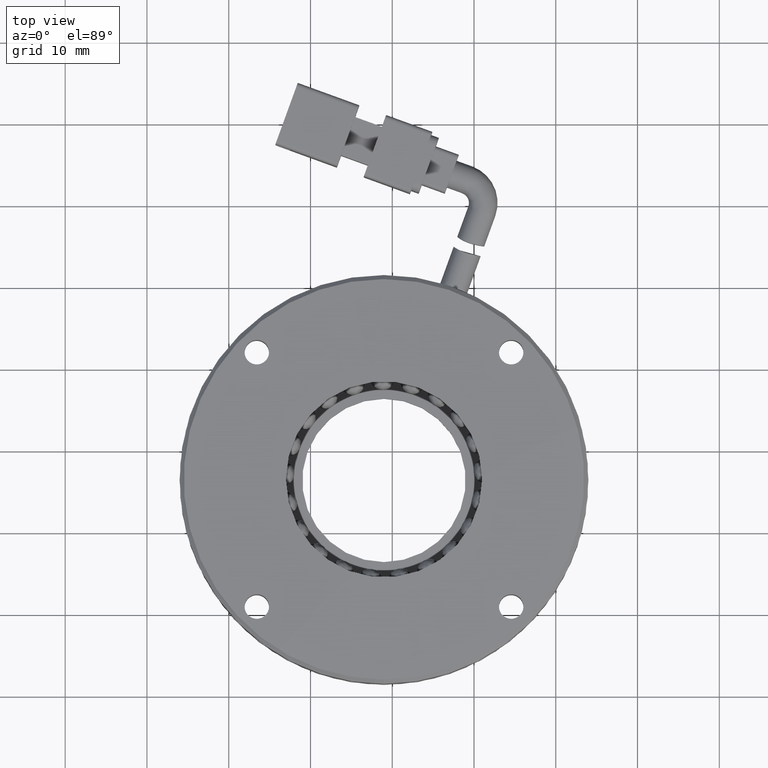
[diagram: clean part render]
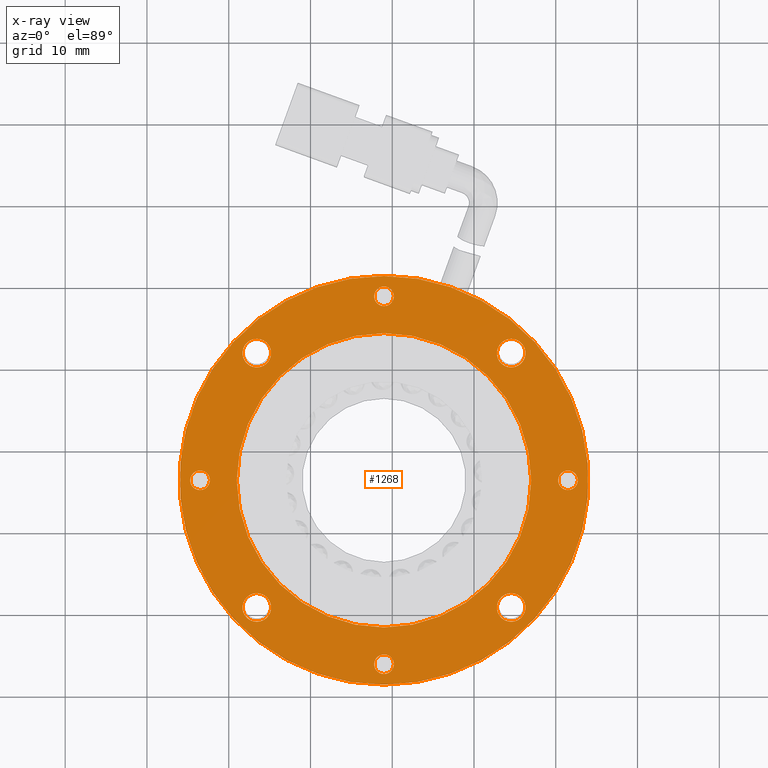
[diagram: x-ray — body ghosted, one internal face saturated and labeled with its STEP entity id]
A machine part, top view, then the same camera in x-ray: the body is ghosted and one INTERNAL B-rep face — a face not visible from any outside direction — is saturated and labeled: STEP entity #1268.
In plain terms, the highlighted planar face has unit normal (-0, -0, -1).
Its self-contained STEP definition (entity closure, byte-faithful):
#2 = CARTESIAN_POINT ( 'NONE',  ( -121.0083944312394000, 6.460725025464729900, -3.499999999999940500 ) ) ;
#172 = DIRECTION ( 'NONE',  ( 0.0000000000000000000, 1.000000000000000000, 0.0000000000000000000 ) ) ;
#203 = CARTESIAN_POINT ( 'NONE',  ( -121.0083944312391500, -16.03927497453527100, -3.499999999999940500 ) ) ;
#624 = CIRCLE ( 'NONE', #5957, 25.00000000000000000 ) ;
#766 = DIRECTION ( 'NONE',  ( -1.278084676573917400E-047, 0.0000000000000000000, -1.000000000000000000 ) ) ;
#858 = FACE_BOUND ( 'NONE', #2101, .T. ) ;
#956 = ORIENTED_EDGE ( 'NONE', *, *, #9378, .T. ) ;
#1020 = CARTESIAN_POINT ( 'NONE',  ( -121.0083944312394800, 27.76072502546471900, -3.499999999999940500 ) ) ;
#1026 = AXIS2_PLACEMENT_3D ( 'NONE', #5763, #19661, #7750 ) ;
#1186 = VERTEX_POINT ( 'NONE', #22109 ) ;
#1268 = ADVANCED_FACE ( 'NONE', ( #16749, #22065, #11439, #1482, #6184, #858, #21432, #16121, #10825, #5564 ), #1804, .F. ) ;
#1301 = AXIS2_PLACEMENT_3D ( 'NONE', #4567, #18446, #6562 ) ;
#1373 = EDGE_CURVE ( 'NONE', #12285, #13074, #3026, .T. ) ;
#1482 = FACE_BOUND ( 'NONE', #25161, .T. ) ;
#1502 = CARTESIAN_POINT ( 'NONE',  ( -136.5647436173435400, 22.01707421156869400, -3.499999999999940500 ) ) ;
#1603 = CARTESIAN_POINT ( 'NONE',  ( -121.0083944312394000, 31.46072502546472900, -3.499999999999940500 ) ) ;
#1804 = PLANE ( 'NONE',  #9235 ) ;
#1940 = AXIS2_PLACEMENT_3D ( 'NONE', #203, #14123, #2210 ) ;
#1961 = VERTEX_POINT ( 'NONE', #10721 ) ;
#2038 = DIRECTION ( 'NONE',  ( 0.0000000000000000000, -1.000000000000000000, 0.0000000000000000000 ) ) ;
#2101 = EDGE_LOOP ( 'NONE', ( #16937, #24736 ) ) ;
#2210 = DIRECTION ( 'NONE',  ( 0.0000000000000000000, 1.000000000000000000, 0.0000000000000000000 ) ) ;
#2223 = CARTESIAN_POINT ( 'NONE',  ( -121.0083944312394000, 6.460725025464729900, -3.499999999999940500 ) ) ;
#2263 = CIRCLE ( 'NONE', #22805, 1.749999999999994700 ) ;
#2620 = VERTEX_POINT ( 'NONE', #15522 ) ;
#2697 = EDGE_CURVE ( 'NONE', #21178, #20421, #2998, .T. ) ;
#2747 = CARTESIAN_POINT ( 'NONE',  ( -121.0083944312394000, 6.460725025464729900, -3.499999999999940500 ) ) ;
#2885 = CARTESIAN_POINT ( 'NONE',  ( -105.4520452451353800, 22.01707421156880100, -3.499999999999940500 ) ) ;
#2998 = CIRCLE ( 'NONE', #23166, 18.00000000000000400 ) ;
#3026 = CIRCLE ( 'NONE', #18589, 1.749999999999994700 ) ;
#3054 = CARTESIAN_POINT ( 'NONE',  ( -136.5647436173435400, 20.26707421156870100, -3.499999999999940500 ) ) ;
#3117 = AXIS2_PLACEMENT_3D ( 'NONE', #24045, #12114, #172 ) ;
#3503 = DIRECTION ( 'NONE',  ( 0.0000000000000000000, 1.000000000000000000, 0.0000000000000000000 ) ) ;
#3892 = DIRECTION ( 'NONE',  ( -1.278084676573917700E-047, -7.983674700015282600E-110, -1.000000000000000000 ) ) ;
#4069 = DIRECTION ( 'NONE',  ( -1.278084676573917700E-047, 1.000000000000000000, 1.633500440493055000E-094 ) ) ;
#4216 = EDGE_LOOP ( 'NONE', ( #15406, #8569 ) ) ;
#4324 = VERTEX_POINT ( 'NONE', #22964 ) ;
#4350 = EDGE_CURVE ( 'NONE', #16460, #9109, #23772, .T. ) ;
#4567 = CARTESIAN_POINT ( 'NONE',  ( -105.4520452451351500, -9.095624160639122400, -3.499999999999940500 ) ) ;
#4764 = VERTEX_POINT ( 'NONE', #22699 ) ;
#4921 = DIRECTION ( 'NONE',  ( 0.0000000000000000000, 1.000000000000000000, 0.0000000000000000000 ) ) ;
#5030 = DIRECTION ( 'NONE',  ( -1.278084676573917400E-047, 0.0000000000000000000, -1.000000000000000000 ) ) ;
#5118 = DIRECTION ( 'NONE',  ( 0.0000000000000000000, -1.000000000000000000, 0.0000000000000000000 ) ) ;
#5184 = CARTESIAN_POINT ( 'NONE',  ( -136.5647436173433100, -7.345624160639461700, -3.499999999999940500 ) ) ;
#5564 = FACE_BOUND ( 'NONE', #4216, .T. ) ;
#5641 = CARTESIAN_POINT ( 'NONE',  ( -105.4520452451351500, -9.095624160639122400, -3.499999999999940500 ) ) ;
#5763 = CARTESIAN_POINT ( 'NONE',  ( -121.0083944312391500, -16.03927497453527100, -3.499999999999940500 ) ) ;
#5822 = CIRCLE ( 'NONE', #12768, 18.00000000000000400 ) ;
#5902 = EDGE_CURVE ( 'NONE', #14553, #2620, #11695, .T. ) ;
#5957 = AXIS2_PLACEMENT_3D ( 'NONE', #2, #13953, #2038 ) ;
#6053 = ORIENTED_EDGE ( 'NONE', *, *, #19858, .T. ) ;
#6094 = EDGE_CURVE ( 'NONE', #25474, #1186, #10436, .T. ) ;
#6115 = DIRECTION ( 'NONE',  ( -1.278084676573917400E-047, 0.0000000000000000000, -1.000000000000000000 ) ) ;
#6184 = FACE_BOUND ( 'NONE', #22026, .T. ) ;
#6506 = AXIS2_PLACEMENT_3D ( 'NONE', #10701, #24636, #12710 ) ;
#6562 = DIRECTION ( 'NONE',  ( 0.0000000000000000000, 1.000000000000000000, 0.0000000000000000000 ) ) ;
#6598 = CARTESIAN_POINT ( 'NONE',  ( -105.4520452451353800, 20.26707421156880800, -3.499999999999940500 ) ) ;
#6603 = ORIENTED_EDGE ( 'NONE', *, *, #5902, .T. ) ;
#6809 = DIRECTION ( 'NONE',  ( -1.278084676573917400E-047, 0.0000000000000000000, -1.000000000000000000 ) ) ;
#6851 = AXIS2_PLACEMENT_3D ( 'NONE', #18006, #6115, #20022 ) ;
#7051 = DIRECTION ( 'NONE',  ( -1.278084676573917400E-047, 0.0000000000000000000, -1.000000000000000000 ) ) ;
#7127 = DIRECTION ( 'NONE',  ( -1.278084676573917400E-047, 0.0000000000000000000, -1.000000000000000000 ) ) ;
#7501 = AXIS2_PLACEMENT_3D ( 'NONE', #19025, #7127, #21044 ) ;
#7614 = DIRECTION ( 'NONE',  ( 0.0000000000000000000, 1.000000000000000000, 0.0000000000000000000 ) ) ;
#7734 = EDGE_LOOP ( 'NONE', ( #14641, #23397 ) ) ;
#7750 = DIRECTION ( 'NONE',  ( 0.0000000000000000000, 1.000000000000000000, 0.0000000000000000000 ) ) ;
#8569 = ORIENTED_EDGE ( 'NONE', *, *, #6094, .T. ) ;
#8916 = EDGE_LOOP ( 'NONE', ( #21882, #24363 ) ) ;
#8919 = CARTESIAN_POINT ( 'NONE',  ( -121.0083944312394000, -11.53927497453527300, -3.499999999999940500 ) ) ;
#9109 = VERTEX_POINT ( 'NONE', #5184 ) ;
#9148 = AXIS2_PLACEMENT_3D ( 'NONE', #16920, #5030, #18921 ) ;
#9187 = ORIENTED_EDGE ( 'NONE', *, *, #14363, .T. ) ;
#9235 = AXIS2_PLACEMENT_3D ( 'NONE', #2223, #3892, #4069 ) ;
#9378 = EDGE_CURVE ( 'NONE', #4324, #10505, #18023, .T. ) ;
#9537 = EDGE_CURVE ( 'NONE', #1186, #25474, #23629, .T. ) ;
#9751 = AXIS2_PLACEMENT_3D ( 'NONE', #5641, #19532, #7614 ) ;
#9889 = CIRCLE ( 'NONE', #6851, 1.199999999999999700 ) ;
#10216 = DIRECTION ( 'NONE',  ( 0.0000000000000000000, -1.000000000000000000, 0.0000000000000000000 ) ) ;
#10246 = EDGE_CURVE ( 'NONE', #21746, #4764, #9889, .T. ) ;
#10326 = DIRECTION ( 'NONE',  ( 1.278084676573917400E-047, -0.0000000000000000000, 1.000000000000000000 ) ) ;
#10381 = CARTESIAN_POINT ( 'NONE',  ( -121.0083944312394000, 6.460725025464729900, -3.499999999999940500 ) ) ;
#10436 = CIRCLE ( 'NONE', #9751, 1.749999999999992900 ) ;
#10505 = VERTEX_POINT ( 'NONE', #1020 ) ;
#10632 = ORIENTED_EDGE ( 'NONE', *, *, #24752, .F. ) ;
#10701 = CARTESIAN_POINT ( 'NONE',  ( -143.5083944312394000, 6.460725025464570100, -3.499999999999940500 ) ) ;
#10708 = CIRCLE ( 'NONE', #1940, 1.199999999999999700 ) ;
#10721 = CARTESIAN_POINT ( 'NONE',  ( -121.0083944312394000, -18.53927497453527500, -3.499999999999940500 ) ) ;
#10825 = FACE_BOUND ( 'NONE', #17319, .T. ) ;
#10835 = DIRECTION ( 'NONE',  ( -1.278084676573917400E-047, 0.0000000000000000000, -1.000000000000000000 ) ) ;
#10874 = DIRECTION ( 'NONE',  ( -1.278084676573917400E-047, 0.0000000000000000000, -1.000000000000000000 ) ) ;
#11234 = VERTEX_POINT ( 'NONE', #1603 ) ;
#11357 = ORIENTED_EDGE ( 'NONE', *, *, #21887, .T. ) ;
#11439 = FACE_BOUND ( 'NONE', #8916, .T. ) ;
#11468 = CARTESIAN_POINT ( 'NONE',  ( -143.5083944312394000, 7.660725025464570200, -3.499999999999940500 ) ) ;
#11531 = EDGE_CURVE ( 'NONE', #24853, #18638, #23118, .T. ) ;
#11695 = CIRCLE ( 'NONE', #18735, 1.199999999999999700 ) ;
#12114 = DIRECTION ( 'NONE',  ( -1.278084676573917400E-047, 0.0000000000000000000, -1.000000000000000000 ) ) ;
#12285 = VERTEX_POINT ( 'NONE', #12302 ) ;
#12302 = CARTESIAN_POINT ( 'NONE',  ( -136.5647436173435400, 23.76707421156868700, -3.499999999999940500 ) ) ;
#12702 = CARTESIAN_POINT ( 'NONE',  ( -105.4520452451353800, 22.01707421156880100, -3.499999999999940500 ) ) ;
#12710 = DIRECTION ( 'NONE',  ( 0.0000000000000000000, 1.000000000000000000, 0.0000000000000000000 ) ) ;
#12768 = AXIS2_PLACEMENT_3D ( 'NONE', #2747, #16664, #5118 ) ;
#12916 = VERTEX_POINT ( 'NONE', #18552 ) ;
#13074 = VERTEX_POINT ( 'NONE', #3054 ) ;
#13100 = CIRCLE ( 'NONE', #18891, 1.199999999999999700 ) ;
#13365 = CIRCLE ( 'NONE', #23132, 1.749999999999994700 ) ;
#13429 = AXIS2_PLACEMENT_3D ( 'NONE', #18702, #6809, #20727 ) ;
#13546 = ORIENTED_EDGE ( 'NONE', *, *, #1373, .T. ) ;
#13745 = ORIENTED_EDGE ( 'NONE', *, *, #2697, .F. ) ;
#13953 = DIRECTION ( 'NONE',  ( -1.278084676573917400E-047, 0.0000000000000000000, -1.000000000000000000 ) ) ;
#14123 = DIRECTION ( 'NONE',  ( -1.278084676573917400E-047, 0.0000000000000000000, -1.000000000000000000 ) ) ;
#14128 = EDGE_LOOP ( 'NONE', ( #13546, #11357 ) ) ;
#14141 = CIRCLE ( 'NONE', #13429, 1.749999999999994700 ) ;
#14363 = EDGE_CURVE ( 'NONE', #9109, #16460, #14141, .T. ) ;
#14553 = VERTEX_POINT ( 'NONE', #11468 ) ;
#14641 = ORIENTED_EDGE ( 'NONE', *, *, #19051, .F. ) ;
#14683 = DIRECTION ( 'NONE',  ( 0.0000000000000000000, 1.000000000000000000, 0.0000000000000000000 ) ) ;
#14996 = CIRCLE ( 'NONE', #17781, 25.00000000000000000 ) ;
#15140 = CIRCLE ( 'NONE', #19886, 1.749999999999994700 ) ;
#15188 = CARTESIAN_POINT ( 'NONE',  ( -136.5647436173435400, 22.01707421156869400, -3.499999999999940500 ) ) ;
#15375 = DIRECTION ( 'NONE',  ( -1.278084676573917400E-047, 0.0000000000000000000, -1.000000000000000000 ) ) ;
#15406 = ORIENTED_EDGE ( 'NONE', *, *, #9537, .T. ) ;
#15418 = DIRECTION ( 'NONE',  ( -1.278084676573917400E-047, 0.0000000000000000000, -1.000000000000000000 ) ) ;
#15464 = DIRECTION ( 'NONE',  ( 0.0000000000000000000, 1.000000000000000000, 0.0000000000000000000 ) ) ;
#15522 = CARTESIAN_POINT ( 'NONE',  ( -143.5083944312394000, 5.260725025464570800, -3.499999999999940500 ) ) ;
#15841 = CARTESIAN_POINT ( 'NONE',  ( -105.4520452451351500, -10.84562416063911500, -3.499999999999940500 ) ) ;
#16121 = FACE_BOUND ( 'NONE', #14128, .T. ) ;
#16274 = EDGE_CURVE ( 'NONE', #10505, #4324, #19809, .T. ) ;
#16460 = VERTEX_POINT ( 'NONE', #21504 ) ;
#16664 = DIRECTION ( 'NONE',  ( 1.278084676573917400E-047, -0.0000000000000000000, 1.000000000000000000 ) ) ;
#16749 = FACE_OUTER_BOUND ( 'NONE', #7734, .T. ) ;
#16810 = DIRECTION ( 'NONE',  ( -1.278084676573917400E-047, 0.0000000000000000000, -1.000000000000000000 ) ) ;
#16920 = CARTESIAN_POINT ( 'NONE',  ( -121.0083944312394800, 28.96072502546472200, -3.499999999999940500 ) ) ;
#16937 = ORIENTED_EDGE ( 'NONE', *, *, #21566, .T. ) ;
#17319 = EDGE_LOOP ( 'NONE', ( #9187, #18208 ) ) ;
#17781 = AXIS2_PLACEMENT_3D ( 'NONE', #18953, #7051, #20969 ) ;
#17873 = EDGE_CURVE ( 'NONE', #4764, #21746, #13100, .T. ) ;
#18006 = CARTESIAN_POINT ( 'NONE',  ( -98.50839443123941000, 6.460725025464729900, -3.499999999999940500 ) ) ;
#18023 = CIRCLE ( 'NONE', #3117, 1.199999999999999700 ) ;
#18208 = ORIENTED_EDGE ( 'NONE', *, *, #4350, .T. ) ;
#18446 = DIRECTION ( 'NONE',  ( -1.278084676573917400E-047, 0.0000000000000000000, -1.000000000000000000 ) ) ;
#18552 = CARTESIAN_POINT ( 'NONE',  ( -105.4520452451353800, 23.76707421156879700, -3.499999999999940500 ) ) ;
#18589 = AXIS2_PLACEMENT_3D ( 'NONE', #15188, #15375, #15464 ) ;
#18638 = VERTEX_POINT ( 'NONE', #19976 ) ;
#18702 = CARTESIAN_POINT ( 'NONE',  ( -136.5647436173433100, -9.095624160639456300, -3.499999999999940500 ) ) ;
#18735 = AXIS2_PLACEMENT_3D ( 'NONE', #22774, #10835, #24757 ) ;
#18891 = AXIS2_PLACEMENT_3D ( 'NONE', #22817, #10874, #24796 ) ;
#18921 = DIRECTION ( 'NONE',  ( 0.0000000000000000000, 1.000000000000000000, 0.0000000000000000000 ) ) ;
#18953 = CARTESIAN_POINT ( 'NONE',  ( -121.0083944312394000, 6.460725025464729900, -3.499999999999940500 ) ) ;
#19025 = CARTESIAN_POINT ( 'NONE',  ( -136.5647436173433100, -9.095624160639456300, -3.499999999999940500 ) ) ;
#19051 = EDGE_CURVE ( 'NONE', #1961, #11234, #624, .T. ) ;
#19339 = ORIENTED_EDGE ( 'NONE', *, *, #16274, .T. ) ;
#19371 = EDGE_CURVE ( 'NONE', #12916, #23831, #13365, .T. ) ;
#19532 = DIRECTION ( 'NONE',  ( -1.278084676573917400E-047, 0.0000000000000000000, -1.000000000000000000 ) ) ;
#19661 = DIRECTION ( 'NONE',  ( -1.278084676573917400E-047, 0.0000000000000000000, -1.000000000000000000 ) ) ;
#19809 = CIRCLE ( 'NONE', #9148, 1.199999999999999700 ) ;
#19858 = EDGE_CURVE ( 'NONE', #2620, #14553, #20808, .T. ) ;
#19886 = AXIS2_PLACEMENT_3D ( 'NONE', #12702, #766, #14683 ) ;
#19976 = CARTESIAN_POINT ( 'NONE',  ( -121.0083944312391500, -14.83927497453527200, -3.499999999999940500 ) ) ;
#20022 = DIRECTION ( 'NONE',  ( 0.0000000000000000000, 1.000000000000000000, 0.0000000000000000000 ) ) ;
#20407 = ORIENTED_EDGE ( 'NONE', *, *, #23222, .T. ) ;
#20421 = VERTEX_POINT ( 'NONE', #8919 ) ;
#20727 = DIRECTION ( 'NONE',  ( 0.0000000000000000000, 1.000000000000000000, 0.0000000000000000000 ) ) ;
#20808 = CIRCLE ( 'NONE', #6506, 1.199999999999999700 ) ;
#20969 = DIRECTION ( 'NONE',  ( 0.0000000000000000000, -1.000000000000000000, 0.0000000000000000000 ) ) ;
#21044 = DIRECTION ( 'NONE',  ( 0.0000000000000000000, 1.000000000000000000, 0.0000000000000000000 ) ) ;
#21098 = EDGE_LOOP ( 'NONE', ( #10632, #13745 ) ) ;
#21178 = VERTEX_POINT ( 'NONE', #25604 ) ;
#21432 = FACE_BOUND ( 'NONE', #22030, .T. ) ;
#21504 = CARTESIAN_POINT ( 'NONE',  ( -136.5647436173433100, -10.84562416063945100, -3.499999999999940500 ) ) ;
#21566 = EDGE_CURVE ( 'NONE', #18638, #24853, #10708, .T. ) ;
#21746 = VERTEX_POINT ( 'NONE', #22764 ) ;
#21882 = ORIENTED_EDGE ( 'NONE', *, *, #10246, .T. ) ;
#21887 = EDGE_CURVE ( 'NONE', #13074, #12285, #2263, .T. ) ;
#22026 = EDGE_LOOP ( 'NONE', ( #6603, #6053 ) ) ;
#22030 = EDGE_LOOP ( 'NONE', ( #22596, #20407 ) ) ;
#22065 = FACE_BOUND ( 'NONE', #21098, .T. ) ;
#22109 = CARTESIAN_POINT ( 'NONE',  ( -105.4520452451351500, -7.345624160639128600, -3.499999999999940500 ) ) ;
#22596 = ORIENTED_EDGE ( 'NONE', *, *, #19371, .T. ) ;
#22699 = CARTESIAN_POINT ( 'NONE',  ( -98.50839443123941000, 5.260725025464729800, -3.499999999999940500 ) ) ;
#22764 = CARTESIAN_POINT ( 'NONE',  ( -98.50839443123941000, 7.660725025464729200, -3.499999999999940500 ) ) ;
#22774 = CARTESIAN_POINT ( 'NONE',  ( -143.5083944312394000, 6.460725025464570100, -3.499999999999940500 ) ) ;
#22805 = AXIS2_PLACEMENT_3D ( 'NONE', #1502, #15418, #3503 ) ;
#22817 = CARTESIAN_POINT ( 'NONE',  ( -98.50839443123941000, 6.460725025464729900, -3.499999999999940500 ) ) ;
#22964 = CARTESIAN_POINT ( 'NONE',  ( -121.0083944312394800, 30.16072502546472100, -3.499999999999940500 ) ) ;
#23118 = CIRCLE ( 'NONE', #1026, 1.199999999999999700 ) ;
#23132 = AXIS2_PLACEMENT_3D ( 'NONE', #2885, #16810, #4921 ) ;
#23166 = AXIS2_PLACEMENT_3D ( 'NONE', #10381, #10326, #10216 ) ;
#23222 = EDGE_CURVE ( 'NONE', #23831, #12916, #15140, .T. ) ;
#23397 = ORIENTED_EDGE ( 'NONE', *, *, #25858, .F. ) ;
#23629 = CIRCLE ( 'NONE', #1301, 1.749999999999992900 ) ;
#23772 = CIRCLE ( 'NONE', #7501, 1.749999999999994700 ) ;
#23831 = VERTEX_POINT ( 'NONE', #6598 ) ;
#24045 = CARTESIAN_POINT ( 'NONE',  ( -121.0083944312394800, 28.96072502546472200, -3.499999999999940500 ) ) ;
#24363 = ORIENTED_EDGE ( 'NONE', *, *, #17873, .T. ) ;
#24636 = DIRECTION ( 'NONE',  ( -1.278084676573917400E-047, 0.0000000000000000000, -1.000000000000000000 ) ) ;
#24736 = ORIENTED_EDGE ( 'NONE', *, *, #11531, .T. ) ;
#24752 = EDGE_CURVE ( 'NONE', #20421, #21178, #5822, .T. ) ;
#24757 = DIRECTION ( 'NONE',  ( 0.0000000000000000000, 1.000000000000000000, 0.0000000000000000000 ) ) ;
#24796 = DIRECTION ( 'NONE',  ( 0.0000000000000000000, 1.000000000000000000, 0.0000000000000000000 ) ) ;
#24853 = VERTEX_POINT ( 'NONE', #25098 ) ;
#25098 = CARTESIAN_POINT ( 'NONE',  ( -121.0083944312391500, -17.23927497453527000, -3.499999999999940500 ) ) ;
#25161 = EDGE_LOOP ( 'NONE', ( #956, #19339 ) ) ;
#25474 = VERTEX_POINT ( 'NONE', #15841 ) ;
#25604 = CARTESIAN_POINT ( 'NONE',  ( -121.0083944312394000, 24.46072502546472900, -3.499999999999940500 ) ) ;
#25858 = EDGE_CURVE ( 'NONE', #11234, #1961, #14996, .T. ) ;